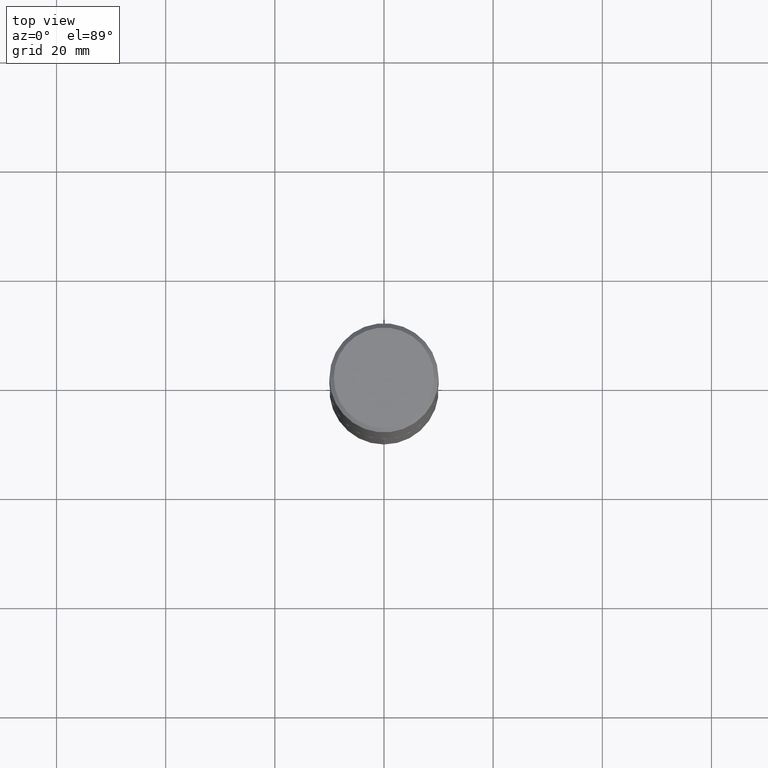
[diagram: clean part render]
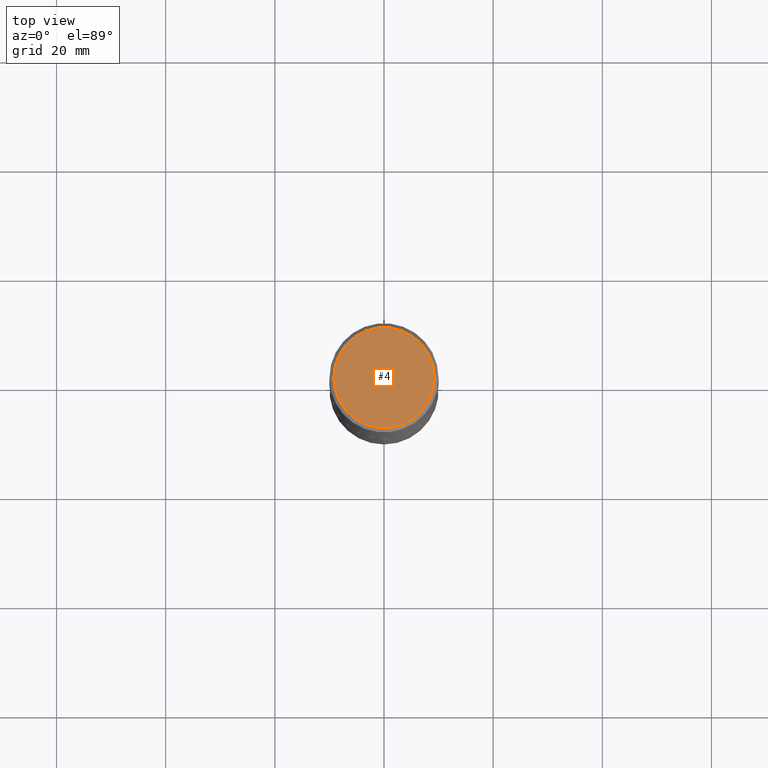
[diagram: same view with one face highlighted and labeled with its STEP entity id]
A machine part, top view. The second image highlights one B-rep face of the part: STEP entity #4.
In plain terms, the highlighted planar face has unit normal (0, -0, -1).
Its self-contained STEP definition (entity closure, byte-faithful):
#4 = ADVANCED_FACE ( 'NONE', ( #341 ), #131, .F. ) ;
#26 = CARTESIAN_POINT ( 'NONE',  ( -1.178467787315321927E-46, 1.682539673960461744E-32, 4.818985154644842843E-18 ) ) ;
#36 = DIRECTION ( 'NONE',  ( 2.438088387897960049E-29, -3.491481338843145188E-15, -1.000000000000000000 ) ) ;
#48 = CARTESIAN_POINT ( 'NONE',  ( 0.3624500000000000499, -2.648337176426896411E-15, 4.818985154662952747E-18 ) ) ;
#70 = DIRECTION ( 'NONE',  ( -2.445468806185136597E-29, 3.491481338843145583E-15, 1.000000000000000000 ) ) ;
#92 = CARTESIAN_POINT ( 'NONE',  ( -5.892338936576609633E-47, 8.412698369802308719E-33, 2.409492577322421421E-18 ) ) ;
#122 = AXIS2_PLACEMENT_3D ( 'NONE', #92, #36, #245 ) ;
#131 = PLANE ( 'NONE',  #122 ) ;
#148 = ORIENTED_EDGE ( 'NONE', *, *, #276, .T. ) ;
#167 = EDGE_CURVE ( 'NONE', #247, #223, #170, .T. ) ;
#170 = CIRCLE ( 'NONE', #299, 0.3624500000000000499 ) ;
#175 = DIRECTION ( 'NONE',  ( -2.445468806185136597E-29, 3.491481338843145583E-15, 1.000000000000000000 ) ) ;
#201 = CARTESIAN_POINT ( 'NONE',  ( -1.178467787315321927E-46, 1.682539673960461744E-32, 4.818985154644842843E-18 ) ) ;
#223 = VERTEX_POINT ( 'NONE', #375 ) ;
#232 = AXIS2_PLACEMENT_3D ( 'NONE', #201, #175, #316 ) ;
#245 = DIRECTION ( 'NONE',  ( -1.000000000000000000, 6.982962677686265922E-15, -4.876176775795935793E-29 ) ) ;
#247 = VERTEX_POINT ( 'NONE', #48 ) ;
#276 = EDGE_CURVE ( 'NONE', #223, #247, #368, .T. ) ;
#299 = AXIS2_PLACEMENT_3D ( 'NONE', #26, #70, #377 ) ;
#316 = DIRECTION ( 'NONE',  ( 1.000000000000000000, -6.982962677686266711E-15, 4.876156645145296500E-29 ) ) ;
#341 = FACE_OUTER_BOUND ( 'NONE', #353, .T. ) ;
#353 = EDGE_LOOP ( 'NONE', ( #148, #385 ) ) ;
#368 = CIRCLE ( 'NONE', #232, 0.3624500000000000499 ) ;
#375 = CARTESIAN_POINT ( 'NONE',  ( -0.3624500000000000499, 2.585529218446811143E-15, 4.818985154626951724E-18 ) ) ;
#377 = DIRECTION ( 'NONE',  ( 1.000000000000000000, -6.982962677686266711E-15, 4.876156645145296500E-29 ) ) ;
#385 = ORIENTED_EDGE ( 'NONE', *, *, #167, .T. ) ;